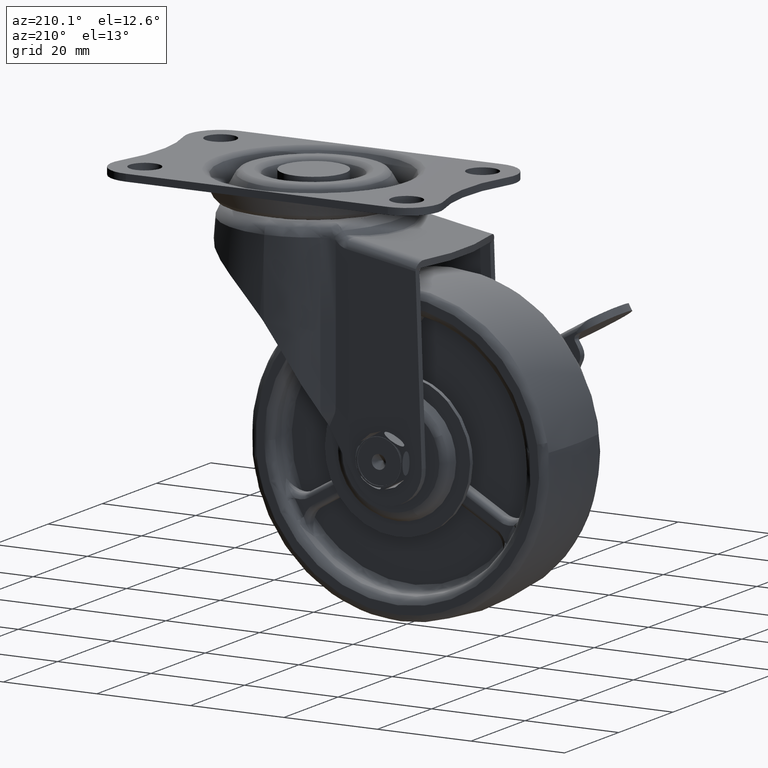
[diagram: clean part render]
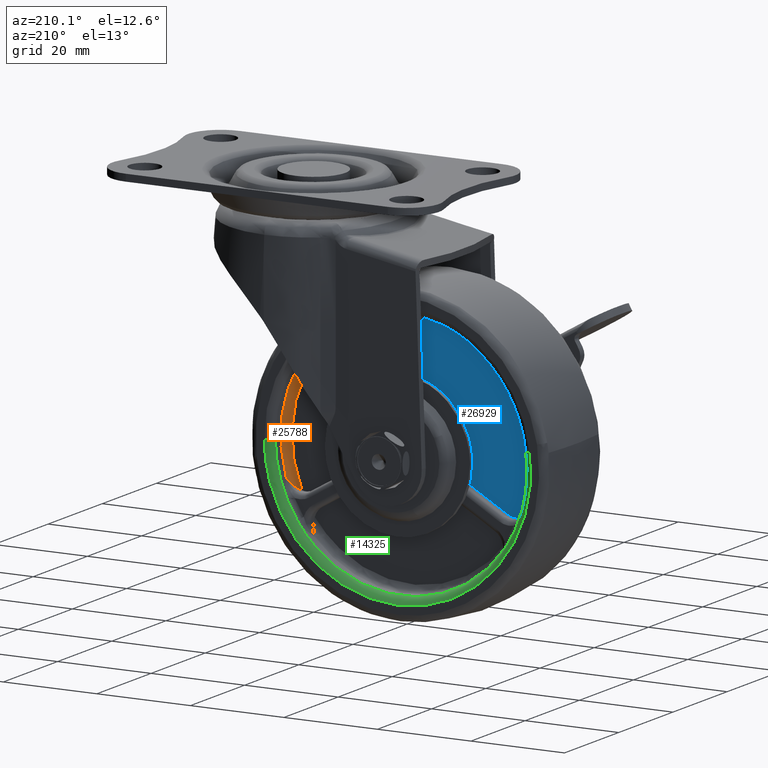
[diagram: same view with three faces highlighted in distinct colors, each labeled with its STEP entity id]
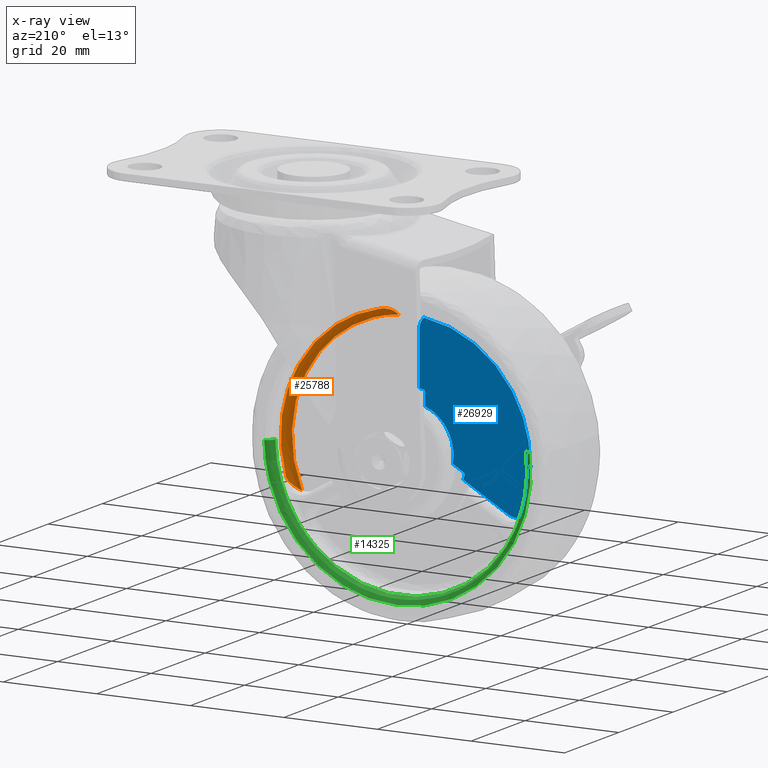
[diagram: x-ray of the same camera — body ghosted, the three highlighted faces saturated]
A machine part, auxiliary view with three faces highlighted in distinct colors.
The next image is the same camera in x-ray (body ghosted, the three faces saturated) — at least one of them is partly hidden behind the body in this view.
Their STEP definitions:

[orange] entity #25788 — the highlighted face is a freeform B-spline surface patch.
#17098=CARTESIAN_POINT('',(1.807665151834615,6.999999999999901,-55.935008250197292));
#17099=VERTEX_POINT('',#17098);
#17543=CARTESIAN_POINT('',(-17.968081162111901,6.999999999999901,-21.682400800960352));
#17544=VERTEX_POINT('',#17543);
#25323=CARTESIAN_POINT('',(-0.671679865304031,5.499999999999880,-58.297543265885203));
#25324=VERTEX_POINT('',#25323);
#25325=CARTESIAN_POINT('',(1.807665151834615,6.999999999999901,-55.935008250197292));
#25326=CARTESIAN_POINT('',(1.802572417654806,6.989417346021186,-55.951571758177629));
#25327=CARTESIAN_POINT('',(1.797263531941373,6.978643638471596,-55.968393292005508));
#25328=CARTESIAN_POINT('',(1.786457539030225,6.957233249904885,-56.001749006744632));
#25329=CARTESIAN_POINT('',(1.769887655901495,6.925153684070589,-56.051614320689858));
#25330=CARTESIAN_POINT('',(1.728709048437610,6.850564636690270,-56.166802064659493));
#25331=CARTESIAN_POINT('',(1.689130452647233,6.787121792885082,-56.263579934565442));
#25332=CARTESIAN_POINT('',(1.604272610714886,6.661003545256827,-56.454610396461838));
#25333=CARTESIAN_POINT('',(1.540127509427934,6.577940325529721,-56.578606638510962));
#25334=CARTESIAN_POINT('',(1.396104531563046,6.414581218477389,-56.820063253236498));
#25335=CARTESIAN_POINT('',(1.316237995153691,6.334277034146261,-56.937524130023156));
#25336=CARTESIAN_POINT('',(1.183444879850539,6.216694078792014,-57.108710034941979));
#25337=CARTESIAN_POINT('',(1.137024814937315,6.178019358758034,-57.164880790768613));
#25338=CARTESIAN_POINT('',(1.040811427791681,6.102766004187364,-57.274137357614443));
#25339=CARTESIAN_POINT('',(0.990885995873707,6.066065866240773,-57.327399661828032));
#25340=CARTESIAN_POINT('',(0.835460711484923,5.959034120109608,-57.483073529685427));
#25341=CARTESIAN_POINT('',(0.724361282010711,5.891724481940802,-57.581394533149037));
#25342=CARTESIAN_POINT('',(0.544986033453203,5.798629475942851,-57.720259943172287));
#25343=CARTESIAN_POINT('',(0.483062536477606,5.768919119112889,-57.765107240059542));
#25344=CARTESIAN_POINT('',(0.354519787393484,5.712620557901545,-57.851771040354542));
#25345=CARTESIAN_POINT('',(0.288323613402311,5.686233789841920,-57.893283625506903));
#25346=CARTESIAN_POINT('',(0.085253696548134,5.613693815011241,-58.011278846061167));
#25347=CARTESIAN_POINT('',(-0.056662904941596,5.573741479956430,-58.081688551809741));
#25348=CARTESIAN_POINT('',(-0.281085686550097,5.530963790820193,-58.174006349235967));
#25349=CARTESIAN_POINT('',(-0.358279058109821,5.519569113998294,-58.202682945193850));
#25350=CARTESIAN_POINT('',(-0.513853883288397,5.504123706243329,-58.254276397452379));
#25351=CARTESIAN_POINT('',(-0.592391840184805,5.499999999999880,-58.277293246200571));
#25352=CARTESIAN_POINT('',(-0.671679865304040,5.499999999999880,-58.297543265885167));
#25353=B_SPLINE_CURVE_WITH_KNOTS('',3,(#25325,#25326,#25327,#25328,#25329,#25330,#25331,#25332,#25333,#25334,#25335,#25336,#25337,#25338,#25339,#25340,#25341,#25342,#25343,#25344,#25345,#25346,#25347,#25348,#25349,#25350,#25351,#25352),.UNSPECIFIED.,.F.,.U.,(4,2,1,1,2,2,2,2,2,2,2,2,2,2,4),(0.0,0.015624999999999,0.031249999999997,0.062499999999998,0.125000000000001,0.250000000000002,0.375000000000004,0.437500000000004,0.500000000000005,0.625000000000002,0.687500000000001,0.749999999999999,0.875000000000000,0.937500000000000,1.0),.UNSPECIFIED.);
#25354=EDGE_CURVE('',#17099,#25324,#25353,.T.);
#25612=CARTESIAN_POINT('',(-21.253767084977849,5.499999999999840,-22.648305626842451));
#25613=VERTEX_POINT('',#25612);
#25614=CARTESIAN_POINT('',(-21.253767084977849,5.499999999999840,-22.648305626842451));
#25615=CARTESIAN_POINT('',(-21.138368555260978,5.499999999999845,-22.530164010211251));
#25616=CARTESIAN_POINT('',(-21.016796356993140,5.516521716597950,-22.422307985272990));
#25617=CARTESIAN_POINT('',(-20.857250396777371,5.551917752464030,-22.299105603553720));
#25618=CARTESIAN_POINT('',(-20.824960606759920,5.559751312781396,-22.275050982165030));
#25619=CARTESIAN_POINT('',(-20.759616960391028,5.576837110956949,-22.228100390802549));
#25620=CARTESIAN_POINT('',(-20.726480081948889,5.586114787047888,-22.205150065972799));
#25621=CARTESIAN_POINT('',(-20.626603656630390,5.615755433273086,-22.138479538466029));
#25622=CARTESIAN_POINT('',(-20.559493661540060,5.637873338622239,-22.096975416527162));
#25623=CARTESIAN_POINT('',(-20.356512504869411,5.710135639395092,-21.980511468169350));
#25624=CARTESIAN_POINT('',(-20.218991768335069,5.766124014545528,-21.913545240605771));
#25625=CARTESIAN_POINT('',(-20.009152194331762,5.859042228488595,-21.827407708345540));
#25626=CARTESIAN_POINT('',(-19.938612556652391,5.891524046484491,-21.801096387299840));
#25627=CARTESIAN_POINT('',(-19.796297360297729,5.959221857884270,-21.753149507625160));
#25628=CARTESIAN_POINT('',(-19.725171120191430,5.994129747287699,-21.731735575324979));
#25629=CARTESIAN_POINT('',(-19.512280828459929,6.101315577640359,-21.674803599606520));
#25630=CARTESIAN_POINT('',(-19.370756917280580,6.176147443877222,-21.646473377101412));
#25631=CARTESIAN_POINT('',(-19.087910467032270,6.330981153615932,-21.607368230847079));
#25632=CARTESIAN_POINT('',(-18.946593124079602,6.410996135159887,-21.596606266015360));
#25633=CARTESIAN_POINT('',(-18.734443593764691,6.534196267148379,-21.593262256226790));
#25634=CARTESIAN_POINT('',(-18.663552603128021,6.575883632073523,-21.594297274926959));
#25635=CARTESIAN_POINT('',(-18.522450418019829,6.659769793524311,-21.600632958701890));
#25636=CARTESIAN_POINT('',(-18.452298989816711,6.701930666121322,-21.605919936815109));
#25637=CARTESIAN_POINT('',(-18.312729858750671,6.786596118041520,-21.620655495708348));
#25638=CARTESIAN_POINT('',(-18.243312752040080,6.829101672852266,-21.630104093990390));
#25639=CARTESIAN_POINT('',(-18.139694597106889,6.893050213133985,-21.647385130483961));
#25640=CARTESIAN_POINT('',(-18.105240691993131,6.914399512880937,-21.653663753935721));
#25641=CARTESIAN_POINT('',(-18.053674268790580,6.946449594340879,-21.663863487528261));
#25642=CARTESIAN_POINT('',(-18.036506141610129,6.957140021757525,-21.667393358137890));
#25643=CARTESIAN_POINT('',(-18.010765216494310,6.973152795525570,-21.672888041913779));
#25644=CARTESIAN_POINT('',(-18.002189931667640,6.978491891364685,-21.674752196358259));
#25645=CARTESIAN_POINT('',(-17.989296367054749,6.986438272026823,-21.677606139213051));
#25646=CARTESIAN_POINT('',(-17.984999185351789,6.989086454935717,-21.678565745505431));
#25647=CARTESIAN_POINT('',(-17.976309618593291,6.994218440064796,-21.680523708443619));
#25648=CARTESIAN_POINT('',(-17.972235724344959,6.997167376279019,-21.681448585375492));
#25649=CARTESIAN_POINT('',(-17.968081162111901,6.999999999999901,-21.682400800960352));
#25650=B_SPLINE_CURVE_WITH_KNOTS('',3,(#25614,#25615,#25616,#25617,#25618,#25619,#25620,#25621,#25622,#25623,#25624,#25625,#25626,#25627,#25628,#25629,#25630,#25631,#25632,#25633,#25634,#25635,#25636,#25637,#25638,#25639,#25640,#25641,#25642,#25643,#25644,#25645,#25646,#25647,#25648,#25649),.UNSPECIFIED.,.F.,.U.,(4,2,2,2,2,2,2,2,2,2,2,2,2,2,2,2,2,4),(0.0,0.125000000000000,0.156250000000000,0.187500000000000,0.250000000000002,0.375000000000002,0.437500000000003,0.500000000000003,0.625000000000003,0.750000000000002,0.812500000000002,0.875000000000002,0.937500000000001,0.968750000000001,0.984375000000000,0.992187500000000,0.996093750000000,1.0),.UNSPECIFIED.);
#25651=EDGE_CURVE('',#25613,#17544,#25650,.T.);
#25732=CARTESIAN_POINT('',(-0.240932959232818,7.104586332630675,-60.818327302669111));
#25733=CARTESIAN_POINT('',(20.548185966341808,7.104586332630674,-22.285225090811007));
#25734=CARTESIAN_POINT('',(-23.216799865048916,7.104586332630676,-21.015009774669657));
#25735=CARTESIAN_POINT('',(-0.135094455843633,5.383996134900336,-60.875428576835027));
#25736=CARTESIAN_POINT('',(20.746632871823859,5.383996134900336,-22.170674596746803));
#25737=CARTESIAN_POINT('',(-23.213310976785944,5.383996134900336,-20.894800906570335));
#25738=CARTESIAN_POINT('',(-1.649398628617038,5.503611494433909,-60.058441422149315));
#25739=CARTESIAN_POINT('',(17.907316673819693,5.503611494433907,-23.809627204729335));
#25740=CARTESIAN_POINT('',(-23.263228897823762,5.503611494433908,-22.614711758841366));
#25748=(BOUNDED_SURFACE()B_SPLINE_SURFACE(2,2,((#25732,#25735,#25738),(#25733,#25736,#25739),(#25734,#25737,#25740)),.UNSPECIFIED.,.F.,.F.,.U.)B_SPLINE_SURFACE_WITH_KNOTS((3,3),(3,3),(0.0,60.279877415865542),(0.0,2.733555907943379),.UNSPECIFIED.)GEOMETRIC_REPRESENTATION_ITEM()RATIONAL_B_SPLINE_SURFACE(((0.836889183095407,0.550714720961816,0.841550722677514),(0.439725924441269,0.289361536353784,0.442175232956023),(0.838767369036391,0.551950660758024,0.843439370264178)))REPRESENTATION_ITEM('')SURFACE());
#25749=CARTESIAN_POINT('',(1.807665151834615,6.999999999999901,-55.935008250197292));
#25750=CARTESIAN_POINT('',(2.232337416524341,6.999999999999916,-54.554107445026098));
#25751=CARTESIAN_POINT('',(2.846688415250719,6.999999999999880,-51.780541648368747));
#25752=CARTESIAN_POINT('',(3.103515673531345,6.999999999999903,-47.557172535124892));
#25753=CARTESIAN_POINT('',(2.752083389385359,6.999999999999907,-43.806130174128427));
#25754=CARTESIAN_POINT('',(1.848251555239779,6.999999999999925,-39.856897081929013));
#25755=CARTESIAN_POINT('',(0.453336548583838,6.999999999999857,-36.289313573943453));
#25756=CARTESIAN_POINT('',(-1.771638923964980,7.000000000000015,-32.492073109848327));
#25757=CARTESIAN_POINT('',(-4.583229508392792,6.999999999999823,-29.021539671726451));
#25758=CARTESIAN_POINT('',(-7.938368504677902,7.0,-26.155826668222620));
#25759=CARTESIAN_POINT('',(-11.147671237168471,6.999999999999725,-24.190370009411598));
#25760=CARTESIAN_POINT('',(-14.293027953934359,7.000000000000201,-22.720325264077800));
#25761=CARTESIAN_POINT('',(-16.559834350096171,6.999999999999552,-22.005045355174371));
#25762=CARTESIAN_POINT('',(-17.968081162111901,6.999999999999901,-21.682400800960352));
#25763=B_SPLINE_CURVE_WITH_KNOTS('',3,(#25749,#25750,#25751,#25752,#25753,#25754,#25755,#25756,#25757,#25758,#25759,#25760,#25761,#25762),.UNSPECIFIED.,.F.,.U.,(4,1,1,1,1,1,1,1,1,1,1,4),(0.000000074012249,4.334168948074925,8.495025308614189,12.655877207458230,15.603134763280870,20.630855960248919,24.098153026901660,28.779103299825220,33.980153227048902,37.274167702712639,40.048054217217008,44.382239579690669),.UNSPECIFIED.);
#25764=EDGE_CURVE('',#17099,#17544,#25763,.T.);
#25765=ORIENTED_EDGE('',*,*,#25764,.F.);
#25766=ORIENTED_EDGE('',*,*,#25354,.T.);
#25767=CARTESIAN_POINT('',(-0.671679865304031,5.499999999999880,-58.297543265885203));
#25768=CARTESIAN_POINT('',(-0.016578501348194,5.499999999999886,-56.813990540085697));
#25769=CARTESIAN_POINT('',(0.831362345161119,5.499999999999877,-54.256586441642973));
#25770=CARTESIAN_POINT('',(1.519128179822718,5.499999999999895,-50.062836838617137));
#25771=CARTESIAN_POINT('',(1.554017953875431,5.499999999999865,-45.928876810974081));
#25772=CARTESIAN_POINT('',(0.849172243778236,5.499999999999888,-41.856681663981469));
#25773=CARTESIAN_POINT('',(-0.494848919253886,5.499999999999884,-37.825016731224011));
#25774=CARTESIAN_POINT('',(-2.271419409332814,5.499999999999865,-34.439305877183202));
#25775=CARTESIAN_POINT('',(-4.524985125549550,5.499999999999927,-31.442236005865190));
#25776=CARTESIAN_POINT('',(-6.560356850857253,5.499999999999780,-29.325312835579471));
#25777=CARTESIAN_POINT('',(-9.102838250412621,5.499999999999952,-27.205507002485628));
#25778=CARTESIAN_POINT('',(-12.392643804931501,5.499999999999752,-25.146451190954188));
#25779=CARTESIAN_POINT('',(-16.633807494886479,5.500000000000106,-23.437370586809649));
#25780=CARTESIAN_POINT('',(-19.703442288211960,5.499999999999517,-22.816095574539069));
#25781=CARTESIAN_POINT('',(-21.253767084977849,5.499999999999840,-22.648305626842451));
#25782=B_SPLINE_CURVE_WITH_KNOTS('',3,(#25767,#25768,#25769,#25770,#25771,#25772,#25773,#25774,#25775,#25776,#25777,#25778,#25779,#25780,#25781),.UNSPECIFIED.,.F.,.U.,(4,1,1,1,1,1,1,1,1,1,1,1,4),(0.000000086024933,4.865220183546484,8.046363176013649,12.724516567075931,17.215526842071071,20.396693095326171,25.448973738094420,28.630144429340820,31.624138302169161,34.243904111671682,38.547807438021032,43.225936896668472,47.904054188482327),.UNSPECIFIED.);
#25783=EDGE_CURVE('',#25324,#25613,#25782,.T.);
#25784=ORIENTED_EDGE('',*,*,#25783,.T.);
#25785=ORIENTED_EDGE('',*,*,#25651,.T.);
#25786=EDGE_LOOP('',(#25765,#25766,#25784,#25785));
#25787=FACE_OUTER_BOUND('',#25786,.T.);
#25788=ADVANCED_FACE('',(#25787),#25748,.F.);

[blue] entity #26929 — the highlighted face is a freeform B-spline surface patch.
#24018=CARTESIAN_POINT('',(-35.221111833886248,5.499999999999840,-51.014403653513803));
#24019=VERTEX_POINT('',#24018);
#24026=CARTESIAN_POINT('',(-35.448116616588209,5.499999999999840,-51.597304150964703));
#24027=VERTEX_POINT('',#24026);
#24033=CARTESIAN_POINT('',(-35.221111833886248,5.499999999999840,-51.014403653513803));
#24034=CARTESIAN_POINT('',(-35.300536784494007,5.499999999999844,-51.059991617960122));
#24035=CARTESIAN_POINT('',(-35.407316465999202,5.499999999999847,-51.170107959296949));
#24036=CARTESIAN_POINT('',(-35.481127200657149,5.499999999999830,-51.386415901257777));
#24037=CARTESIAN_POINT('',(-35.471465623941711,5.499999999999858,-51.523443110652167));
#24038=CARTESIAN_POINT('',(-35.448116616588209,5.499999999999840,-51.597304150964703));
#24039=B_SPLINE_CURVE_WITH_KNOTS('',3,(#24033,#24034,#24035,#24036,#24037,#24038),.UNSPECIFIED.,.F.,.U.,(4,1,1,4),(0.000000324811324,0.274588564917830,0.443530060473280,0.675877648366650),.UNSPECIFIED.);
#24040=EDGE_CURVE('',#24019,#24027,#24039,.T.);
#24091=CARTESIAN_POINT('',(-32.912139278761309,5.499999999999880,-49.681317184623303));
#24092=VERTEX_POINT('',#24091);
#24103=CARTESIAN_POINT('',(-32.912139278761309,5.499999999999880,-49.681317184623303));
#24104=CARTESIAN_POINT('',(-35.221111833886248,5.499999999999840,-51.014403653513803));
#24105=QUASI_UNIFORM_CURVE('',1,(#24103,#24104),.UNSPECIFIED.,.F.,.U.);
#24106=EDGE_CURVE('',#24092,#24019,#24105,.T.);
#24255=CARTESIAN_POINT('',(-35.156203291369437,5.499999999999840,-52.420304600271912));
#24256=VERTEX_POINT('',#24255);
#24262=CARTESIAN_POINT('',(-35.448116616588209,5.499999999999840,-51.597304150964703));
#24263=CARTESIAN_POINT('',(-35.360841179118893,5.499999999999849,-51.875056804125819));
#24264=CARTESIAN_POINT('',(-35.263448904633513,5.499999999999838,-52.149634591236492));
#24265=CARTESIAN_POINT('',(-35.156203291369437,5.499999999999840,-52.420304600271912));
#24266=B_SPLINE_CURVE_WITH_KNOTS('',3,(#24262,#24263,#24264,#24265),.UNSPECIFIED.,.F.,.U.,(4,4),(1.951348E-010,0.873432956247361),.UNSPECIFIED.);
#24267=EDGE_CURVE('',#24027,#24256,#24266,.T.);
#24286=CARTESIAN_POINT('',(-26.608695114156799,5.499999999999840,-36.286981452012199));
#24287=VERTEX_POINT('',#24286);
#24294=CARTESIAN_POINT('',(-26.999999484400249,5.499999999999840,-36.775023742037597));
#24295=VERTEX_POINT('',#24294);
#24301=CARTESIAN_POINT('',(-26.608695114156799,5.499999999999840,-36.286981452012199));
#24302=CARTESIAN_POINT('',(-26.698133347053378,5.499999999999842,-36.306664948104803));
#24303=CARTESIAN_POINT('',(-26.833016777543310,5.499999999999835,-36.379701084608378));
#24304=CARTESIAN_POINT('',(-26.968264757441940,5.499999999999855,-36.563944489779828));
#24305=CARTESIAN_POINT('',(-27.000140783618619,5.499999999999828,-36.697557086677712));
#24306=CARTESIAN_POINT('',(-26.999999484400249,5.499999999999840,-36.775023742037597));
#24307=B_SPLINE_CURVE_WITH_KNOTS('',3,(#24301,#24302,#24303,#24304,#24305,#24306),.UNSPECIFIED.,.F.,.U.,(4,1,1,4),(0.000000324812655,0.274588658902083,0.443530212254664,0.675877879675572),.UNSPECIFIED.);
#24308=EDGE_CURVE('',#24287,#24295,#24307,.T.);
#24361=CARTESIAN_POINT('',(-26.999999392723399,5.499999999999880,-39.441195202367062));
#24362=VERTEX_POINT('',#24361);
#24370=CARTESIAN_POINT('',(-26.999999484400249,5.499999999999840,-36.775023742037597));
#24371=CARTESIAN_POINT('',(-26.999999392723399,5.499999999999880,-39.441195202367062));
#24372=QUASI_UNIFORM_CURVE('',1,(#24370,#24371),.UNSPECIFIED.,.F.,.U.);
#24373=EDGE_CURVE('',#24295,#24362,#24372,.T.);
#24440=CARTESIAN_POINT('',(-25.749998056451499,5.499999999999840,-36.128285642919337));
#24441=VERTEX_POINT('',#24440);
#24442=CARTESIAN_POINT('',(-25.749998056451499,5.499999999999840,-36.128285642919337));
#24443=CARTESIAN_POINT('',(-26.038029047697030,5.499999999999836,-36.170743232809883));
#24444=CARTESIAN_POINT('',(-26.324514538828581,5.499999999999848,-36.223687827663419));
#24445=CARTESIAN_POINT('',(-26.608695114156799,5.499999999999840,-36.286981452012199));
#24446=B_SPLINE_CURVE_WITH_KNOTS('',3,(#24442,#24443,#24444,#24445),.UNSPECIFIED.,.F.,.U.,(4,4),(1.950982E-010,0.873434026398208),.UNSPECIFIED.);
#24447=EDGE_CURVE('',#24441,#24287,#24446,.T.);
#25110=CARTESIAN_POINT('',(-44.712231000000003,5.499999999999840,-57.937476538999903));
#25111=VERTEX_POINT('',#25110);
#25118=CARTESIAN_POINT('',(-47.328324349542903,5.499999999999880,-58.297533717460603));
#25119=VERTEX_POINT('',#25118);
#25157=CARTESIAN_POINT('',(-47.328324349542903,5.499999999999880,-58.297533717460603));
#25158=CARTESIAN_POINT('',(-47.027723424899548,5.499999999999869,-58.374418783533919));
#25159=CARTESIAN_POINT('',(-46.490751217413141,5.499999999999876,-58.437379783091771));
#25160=CARTESIAN_POINT('',(-45.589643504653637,5.499999999999849,-58.335556719650022));
#25161=CARTESIAN_POINT('',(-45.029716552589122,5.499999999999846,-58.120980782777302));
#25162=CARTESIAN_POINT('',(-44.712231000000003,5.499999999999840,-57.937476538999903));
#25163=B_SPLINE_CURVE_WITH_KNOTS('',3,(#25157,#25158,#25159,#25160,#25161,#25162),.UNSPECIFIED.,.F.,.U.,(4,1,1,4),(0.000000019433803,0.930822624955596,1.607783421477482,2.707846732670477),.UNSPECIFIED.);
#25164=EDGE_CURVE('',#25119,#25111,#25163,.T.);
#25679=CARTESIAN_POINT('',(-26.746222538420451,5.499999999999840,-22.648304502794701));
#25680=VERTEX_POINT('',#25679);
#25713=CARTESIAN_POINT('',(-25.749996078900949,5.499999999999840,-25.093936948194049));
#25714=VERTEX_POINT('',#25713);
#25720=CARTESIAN_POINT('',(-25.749996078900949,5.499999999999840,-25.093936948194049));
#25721=CARTESIAN_POINT('',(-25.749952397234079,5.499999999999841,-24.840077048104359));
#25722=CARTESIAN_POINT('',(-25.802407600860850,5.499999999999843,-24.360605325730610));
#25723=CARTESIAN_POINT('',(-26.082658693894899,5.499999999999843,-23.498143706260041));
#25724=CARTESIAN_POINT('',(-26.450271070758220,5.499999999999842,-22.950751082189768));
#25725=CARTESIAN_POINT('',(-26.746222538420451,5.499999999999840,-22.648304502794701));
#25726=B_SPLINE_CURVE_WITH_KNOTS('',3,(#25720,#25721,#25722,#25723,#25724,#25725),.UNSPECIFIED.,.F.,.U.,(4,1,1,4),(0.000000019432195,0.761581907006202,1.438543073069438,2.707846595368655),.UNSPECIFIED.);
#25727=EDGE_CURVE('',#25714,#25680,#25726,.T.);
#26041=CARTESIAN_POINT('',(-26.746222538420451,5.499999999999840,-22.648304502794701));
#26042=CARTESIAN_POINT('',(-27.924452531257600,5.499999999999839,-22.775897249582609));
#26043=CARTESIAN_POINT('',(-30.447708793524079,5.499999999999830,-23.228865280280790));
#26044=CARTESIAN_POINT('',(-34.120696554032612,5.499999999999912,-24.478881436195710));
#26045=CARTESIAN_POINT('',(-37.273991635515308,5.499999999999773,-26.144026718153331));
#26046=CARTESIAN_POINT('',(-39.774966385362212,5.499999999999933,-27.907913857898471));
#26047=CARTESIAN_POINT('',(-41.987764920626837,5.499999999999862,-29.836834730644561));
#26048=CARTESIAN_POINT('',(-44.288150735278293,5.499999999999870,-32.393120227720402));
#26049=CARTESIAN_POINT('',(-46.146519963824211,5.499999999999965,-35.215443595777977));
#26050=CARTESIAN_POINT('',(-47.679808188111217,5.499999999999787,-38.358339102666143));
#26051=CARTESIAN_POINT('',(-48.731323558802082,5.499999999999988,-41.436857878784281));
#26052=CARTESIAN_POINT('',(-49.320958623070403,5.499999999999786,-44.569927313020777));
#26053=CARTESIAN_POINT('',(-49.557911463261078,5.499999999999924,-47.682721630735593));
#26054=CARTESIAN_POINT('',(-49.446477810145502,5.499999999999869,-50.369748965462762));
#26055=CARTESIAN_POINT('',(-48.857921619099443,5.499999999999914,-54.131987295761682));
#26056=CARTESIAN_POINT('',(-48.084357486846727,5.499999999999665,-56.585766387627402));
#26057=CARTESIAN_POINT('',(-47.328324349542903,5.499999999999880,-58.297533717460603));
#26058=B_SPLINE_CURVE_WITH_KNOTS('',3,(#26041,#26042,#26043,#26044,#26045,#26046,#26047,#26048,#26049,#26050,#26051,#26052,#26053,#26054,#26055,#26056,#26057),.UNSPECIFIED.,.F.,.U.,(4,1,1,1,1,1,1,1,1,1,1,1,1,1,4),(0.000000085979899,3.555360638020218,7.672131550280987,11.601762321061630,14.221528326408331,16.841294506952369,20.396693095294310,24.513344384200082,26.946018206328070,30.875631543848801,34.243904111651680,36.489418031942847,40.231943023829572,42.290302372107803,47.904054188482107),.UNSPECIFIED.);
#26059=EDGE_CURVE('',#25680,#25119,#26058,.T.);
#26410=CARTESIAN_POINT('',(-44.712231000000003,5.499999999999840,-57.937476538999903));
#26411=CARTESIAN_POINT('',(-35.156203291369437,5.499999999999840,-52.420304600271912));
#26412=QUASI_UNIFORM_CURVE('',1,(#26410,#26411),.UNSPECIFIED.,.F.,.U.);
#26413=EDGE_CURVE('',#25111,#24256,#26412,.T.);
#26595=CARTESIAN_POINT('',(-25.749996078900949,5.499999999999840,-25.093936948194049));
#26596=CARTESIAN_POINT('',(-25.749998056451499,5.499999999999840,-36.128285642919337));
#26597=QUASI_UNIFORM_CURVE('',1,(#26595,#26596),.UNSPECIFIED.,.F.,.U.);
#26598=EDGE_CURVE('',#25714,#24441,#26597,.T.);
#26894=CARTESIAN_POINT('',(-26.999999392723399,5.499999999999880,-39.441195202367062));
#26895=CARTESIAN_POINT('',(-27.633089235224411,5.499999999999900,-39.662992838008833));
#26896=CARTESIAN_POINT('',(-28.849661254145811,5.499999999999860,-40.247943673820892));
#26897=CARTESIAN_POINT('',(-30.410431294483310,5.499999999999897,-41.484317131531292));
#26898=CARTESIAN_POINT('',(-31.540562913399452,5.499999999999867,-42.869277320459311));
#26899=CARTESIAN_POINT('',(-32.251985706990602,5.499999999999879,-44.167357236123962));
#26900=CARTESIAN_POINT('',(-32.764729500076243,5.499999999999867,-45.518251875477752));
#26901=CARTESIAN_POINT('',(-33.136502890381131,5.499999999999925,-47.334556479602682));
#26902=CARTESIAN_POINT('',(-33.074186793345980,5.499999999999855,-48.824409182859853));
#26903=CARTESIAN_POINT('',(-32.912139278761309,5.499999999999880,-49.681317184623303));
#26904=B_SPLINE_CURVE_WITH_KNOTS('',3,(#26894,#26895,#26896,#26897,#26898,#26899,#26900,#26901,#26902,#26903),.UNSPECIFIED.,.F.,.U.,(4,1,1,1,1,1,1,4),(0.000000105214642,2.012441288359250,4.024902012248965,5.936766505718044,7.345405380774468,8.452278207383722,10.263499971908290,12.879675816306129),.UNSPECIFIED.);
#26905=EDGE_CURVE('',#24362,#24092,#26904,.T.);
#26910=CARTESIAN_POINT('',(-50.679459734656540,5.499999999999881,-60.192399323518593));
#26911=CARTESIAN_POINT('',(-50.679459734656540,5.499999999999880,-20.862192331750240));
#26912=CARTESIAN_POINT('',(-24.564008811047501,5.499999999999881,-60.192399323518593));
#26913=CARTESIAN_POINT('',(-24.564008811047501,5.499999999999880,-20.862192331750240));
#26914=B_SPLINE_SURFACE_WITH_KNOTS('',1,1,((#26910,#26912),(#26911,#26913)),.UNSPECIFIED.,.F.,.F.,.U.,(2,2),(2,2),(0.0,39.330206991768350),(0.0,26.115450923609039),.UNSPECIFIED.);
#26915=ORIENTED_EDGE('',*,*,#26905,.T.);
#26916=ORIENTED_EDGE('',*,*,#24106,.T.);
#26917=ORIENTED_EDGE('',*,*,#24040,.T.);
#26918=ORIENTED_EDGE('',*,*,#24267,.T.);
#26919=ORIENTED_EDGE('',*,*,#26413,.F.);
#26920=ORIENTED_EDGE('',*,*,#25164,.F.);
#26921=ORIENTED_EDGE('',*,*,#26059,.F.);
#26922=ORIENTED_EDGE('',*,*,#25727,.F.);
#26923=ORIENTED_EDGE('',*,*,#26598,.T.);
#26924=ORIENTED_EDGE('',*,*,#24447,.T.);
#26925=ORIENTED_EDGE('',*,*,#24308,.T.);
#26926=ORIENTED_EDGE('',*,*,#24373,.T.);
#26927=EDGE_LOOP('',(#26915,#26916,#26917,#26918,#26919,#26920,#26921,#26922,#26923,#26924,#26925,#26926));
#26928=FACE_OUTER_BOUND('',#26927,.T.);
#26929=ADVANCED_FACE('',(#26928),#26914,.T.);

[green] entity #14325 — the highlighted face is a freeform B-spline surface patch.
#14166=CARTESIAN_POINT('',(-50.781723147693683,8.895694271000259,-44.545232612276017));
#14167=CARTESIAN_POINT('',(-50.981842985836089,8.895694271000259,-46.096584615291725));
#14168=CARTESIAN_POINT('',(-51.001498863133278,8.895694271000259,-47.660667296407595));
#14169=CARTESIAN_POINT('',(-51.340827566725686,8.895694271000261,-74.662166159540888));
#14170=CARTESIAN_POINT('',(-24.339328703592400,8.895694271000259,-75.001494863133289));
#14171=CARTESIAN_POINT('',(2.662170159540886,8.895694271000261,-75.340823566725703));
#14172=CARTESIAN_POINT('',(3.001498863133284,8.895694271000259,-48.339324703592403));
#14173=CARTESIAN_POINT('',(-50.662771894365761,10.616307360756180,-44.560576973527724));
#14174=CARTESIAN_POINT('',(-50.862002898528694,10.616307360756181,-46.105038633300985));
#14175=CARTESIAN_POINT('',(-50.881571474078086,10.616307360756181,-47.662174427758345));
#14176=CARTESIAN_POINT('',(-51.219393046319752,10.616307360756180,-74.543745901836417));
#14177=CARTESIAN_POINT('',(-24.337821572241676,10.616307360756181,-74.881567474078096));
#14178=CARTESIAN_POINT('',(2.543749901836421,10.616307360756180,-75.219389046319748));
#14179=CARTESIAN_POINT('',(2.881571474078092,10.616307360756181,-48.337817572241676));
#14180=CARTESIAN_POINT('',(-52.369245390117136,10.496368949574540,-44.340446919806730));
#14181=CARTESIAN_POINT('',(-52.581227597698927,10.496368949574538,-45.983757375123410));
#14182=CARTESIAN_POINT('',(-52.602048603252882,10.496368949574535,-47.640553136408450));
#14183=CARTESIAN_POINT('',(-52.961491466844421,10.496368949574535,-76.242601739661310));
#14184=CARTESIAN_POINT('',(-24.359442863591543,10.496368949574535,-76.602044603252864));
#14185=CARTESIAN_POINT('',(4.242605739661324,10.496368949574535,-76.961487466844417));
#14186=CARTESIAN_POINT('',(4.602048603252877,10.496368949574535,-48.359438863591549));
#14194=(BOUNDED_SURFACE()B_SPLINE_SURFACE(2,2,((#14166,#14173,#14180),(#14167,#14174,#14181),(#14168,#14175,#14182),(#14169,#14176,#14183),(#14170,#14177,#14184),(#14171,#14178,#14185),(#14172,#14179,#14186)),.UNSPECIFIED.,.F.,.F.,.U.)B_SPLINE_SURFACE_WITH_KNOTS((3,2,2,3),(3,3),(0.0,3.791449803210615,51.184617540990153,98.577785278769667),(0.0,2.733562659867075),.UNSPECIFIED.)GEOMETRIC_REPRESENTATION_ITEM()RATIONAL_B_SPLINE_SURFACE(((0.871225528325474,0.571719740789479,0.871225886449487),(0.889145964494378,0.583479574251903,0.889146329984726),(0.910479813201066,0.597479373449790,0.910480187460858),(0.643806450047935,0.422481716585436,0.643806714689572),(0.910479813201066,0.597479373449790,0.910480187460858),(0.643806450047935,0.422481716585436,0.643806714689572),(0.910479813201066,0.597479373449790,0.910480187460858)))REPRESENTATION_ITEM('')SURFACE());
#14195=CARTESIAN_POINT('',(-52.265795055891971,10.499999999999879,-44.353788467567121));
#14196=VERTEX_POINT('',#14195);
#14197=CARTESIAN_POINT('',(-24.0,10.499999999999879,-76.499995999999996));
#14198=VERTEX_POINT('',#14197);
#14199=CARTESIAN_POINT('',(-52.265795055891971,10.499999999999879,-44.353788467567121));
#14200=CARTESIAN_POINT('',(-52.459460237967598,10.499999999999890,-45.854587308989530));
#14201=CARTESIAN_POINT('',(-52.616307290706317,10.499999999999890,-49.076659507214593));
#14202=CARTESIAN_POINT('',(-52.105988724831043,10.499999999999860,-53.287274415185983));
#14203=CARTESIAN_POINT('',(-50.955668902328021,10.499999999999959,-57.554875069087878));
#14204=CARTESIAN_POINT('',(-49.405599837427893,10.499999999999771,-61.160752393433867));
#14205=CARTESIAN_POINT('',(-47.463220972208923,10.500000000000041,-64.267908138923275));
#14206=CARTESIAN_POINT('',(-45.331222381498392,10.499999999999620,-67.006475821493709));
#14207=CARTESIAN_POINT('',(-43.015772667046299,10.500000000000030,-69.342443024804524));
#14208=CARTESIAN_POINT('',(-40.166061318840903,10.499999999999829,-71.540658511087301));
#14209=CARTESIAN_POINT('',(-37.631847576913643,10.499999999999890,-73.085889577645489));
#14210=CARTESIAN_POINT('',(-34.782778103418202,10.499999999999890,-74.443529415084839));
#14211=CARTESIAN_POINT('',(-31.859347841297950,10.499999999999851,-75.461802144766722));
#14212=CARTESIAN_POINT('',(-28.161389009668440,10.499999999999931,-76.284930211857258));
#14213=CARTESIAN_POINT('',(-25.576308775081969,10.499999999999890,-76.500136789037867));
#14214=CARTESIAN_POINT('',(-24.0,10.499999999999879,-76.499995999999996));
#14215=B_SPLINE_CURVE_WITH_KNOTS('',3,(#14199,#14200,#14201,#14202,#14203,#14204,#14205,#14206,#14207,#14208,#14209,#14210,#14211,#14212,#14213,#14214),.UNSPECIFIED.,.F.,.U.,(4,1,1,1,1,1,1,1,1,1,1,1,1,4),(0.000000076022950,4.539742938878490,9.646969133558983,12.673473031666679,17.780701478417079,21.374706123102040,23.644584740332281,28.184285188083379,31.210788733190871,34.426437072969627,37.074635251836547,40.668606617907443,43.695109552070242,48.424012503146074),.UNSPECIFIED.);
#14216=EDGE_CURVE('',#14196,#14198,#14215,.T.);
#14217=ORIENTED_EDGE('',*,*,#14216,.F.);
#14218=CARTESIAN_POINT('',(-50.778121639999902,9.000000003031580,-44.545694126485053));
#14219=VERTEX_POINT('',#14218);
#14220=CARTESIAN_POINT('',(-50.778121639999902,9.000000003031580,-44.545694126485053));
#14221=CARTESIAN_POINT('',(-50.777899272433856,9.196394004121599,-44.545722811271688));
#14222=CARTESIAN_POINT('',(-50.836345055081360,9.490735478002723,-44.538183470774641));
#14223=CARTESIAN_POINT('',(-51.038154016826986,9.871374530543619,-44.512150686048692));
#14224=CARTESIAN_POINT('',(-51.282198743838933,10.149703682789831,-44.480669607175408));
#14225=CARTESIAN_POINT('',(-51.694024045401633,10.419878301775160,-44.427545309187273));
#14226=CARTESIAN_POINT('',(-52.046642110088563,10.500358274213211,-44.382058577134742));
#14227=CARTESIAN_POINT('',(-52.265795055891971,10.499999999999879,-44.353788467567121));
#14228=B_SPLINE_CURVE_WITH_KNOTS('',3,(#14220,#14221,#14222,#14223,#14224,#14225,#14226,#14227),.UNSPECIFIED.,.F.,.U.,(4,1,1,1,1,4),(0.000000285955935,0.589064494253819,0.883618587621487,1.288575075546695,1.693553628198993,2.356253612612516),.UNSPECIFIED.);
#14229=EDGE_CURVE('',#14219,#14196,#14228,.T.);
#14230=ORIENTED_EDGE('',*,*,#14229,.F.);
#14231=CARTESIAN_POINT('',(-48.314313469151998,8.999999999999879,-59.739423606311000));
#14232=VERTEX_POINT('',#14231);
#14233=CARTESIAN_POINT('',(-50.778121639999902,9.000000003031580,-44.545694126485053));
#14234=CARTESIAN_POINT('',(-50.955022977244688,9.000000002509644,-45.916347306499972));
#14235=CARTESIAN_POINT('',(-51.085009078060878,9.000000001670527,-48.440575882964019));
#14236=CARTESIAN_POINT('',(-50.789824611415263,9.000000000854595,-51.767266430947792));
#14237=CARTESIAN_POINT('',(-50.041655376071773,9.000000000193255,-55.518155231487441));
#14238=CARTESIAN_POINT('',(-49.127594396154457,8.999999999999666,-58.055738531472819));
#14239=CARTESIAN_POINT('',(-48.314313469151998,8.999999999999879,-59.739423606311000));
#14240=B_SPLINE_CURVE_WITH_KNOTS('',3,(#14233,#14234,#14235,#14236,#14237,#14238,#14239),.UNSPECIFIED.,.F.,.U.,(4,1,1,1,4),(2.300032E-009,4.146059230164715,7.560461166246623,9.999318954709569,15.608693533477680),.UNSPECIFIED.);
#14241=EDGE_CURVE('',#14219,#14232,#14240,.T.);
#14242=ORIENTED_EDGE('',*,*,#14241,.T.);
#14243=CARTESIAN_POINT('',(-46.323805401514498,8.999999999999879,-63.187086320246102));
#14244=VERTEX_POINT('',#14243);
#14245=CARTESIAN_POINT('',(-48.314313469151998,8.999999999999879,-59.739423606311000));
#14246=CARTESIAN_POINT('',(-47.736847807680078,8.999999999999881,-60.935535317137251));
#14247=CARTESIAN_POINT('',(-47.070948640115283,8.999999999999885,-62.088938047739212));
#14248=CARTESIAN_POINT('',(-46.323805401514498,8.999999999999879,-63.187086320246102));
#14249=B_SPLINE_CURVE_WITH_KNOTS('',3,(#14245,#14246,#14247,#14248),.UNSPECIFIED.,.F.,.U.,(4,4),(5.597536E-010,3.984636054970689),.UNSPECIFIED.);
#14250=EDGE_CURVE('',#14232,#14244,#14249,.T.);
#14251=ORIENTED_EDGE('',*,*,#14250,.T.);
#14252=CARTESIAN_POINT('',(-1.676200732470385,8.999999999999879,-63.187095336708303));
#14253=VERTEX_POINT('',#14252);
#14254=CARTESIAN_POINT('',(-46.323805401514498,8.999999999999879,-63.187086320246102));
#14255=CARTESIAN_POINT('',(-45.476944428786233,8.999999999999879,-64.432098936247613));
#14256=CARTESIAN_POINT('',(-43.487678303814782,8.999999999999863,-66.886593081407113));
#14257=CARTESIAN_POINT('',(-39.906484007716770,8.999999999999892,-69.995302861080603));
#14258=CARTESIAN_POINT('',(-36.244352205696501,8.999999999999856,-72.171097726035597));
#14259=CARTESIAN_POINT('',(-32.822673633489281,8.999999999999961,-73.584072968183932));
#14260=CARTESIAN_POINT('',(-29.587892992449010,8.999999999999604,-74.492504208302236));
#14261=CARTESIAN_POINT('',(-25.786170580524029,9.000000000000348,-75.045744108664664));
#14262=CARTESIAN_POINT('',(-22.008749684873049,8.999999999999654,-75.017035714736721));
#14263=CARTESIAN_POINT('',(-18.686493147299519,8.999999999999815,-74.520579616379280));
#14264=CARTESIAN_POINT('',(-15.500801741239680,9.000000000000020,-73.703973953453954));
#14265=CARTESIAN_POINT('',(-11.733340872620531,8.999999999999796,-72.214957046456988));
#14266=CARTESIAN_POINT('',(-8.109555391323600,8.999999999999943,-69.967385132322320));
#14267=CARTESIAN_POINT('',(-4.577494051762789,8.999999999999767,-66.924966593959198));
#14268=CARTESIAN_POINT('',(-2.715448815860256,9.000000000000078,-64.715145668425308));
#14269=CARTESIAN_POINT('',(-1.676200732470385,8.999999999999879,-63.187095336708303));
#14270=B_SPLINE_CURVE_WITH_KNOTS('',3,(#14254,#14255,#14256,#14257,#14258,#14259,#14260,#14261,#14262,#14263,#14264,#14265,#14266,#14267,#14268,#14269),.UNSPECIFIED.,.F.,.U.,(4,1,1,1,1,1,1,1,1,1,1,1,1,4),(0.000000067368312,4.517190438561912,9.445106697745601,14.167690104276449,17.247635279849689,20.532883107862229,24.228843123170542,28.745979092274450,31.825954867337920,34.289898136465837,38.601803179530890,43.940360112605127,47.020319528316620,52.564161900470523),.UNSPECIFIED.);
#14271=EDGE_CURVE('',#14244,#14253,#14270,.T.);
#14272=ORIENTED_EDGE('',*,*,#14271,.T.);
#14273=CARTESIAN_POINT('',(0.314308727659106,8.999999999999879,-59.739433426728802));
#14274=VERTEX_POINT('',#14273);
#14275=CARTESIAN_POINT('',(-1.676200732470385,8.999999999999879,-63.187095336708303));
#14276=CARTESIAN_POINT('',(-0.929057638427990,8.999999999999886,-62.088946977165101));
#14277=CARTESIAN_POINT('',(-0.263157382070379,8.999999999999877,-60.935545038107442));
#14278=CARTESIAN_POINT('',(0.314308727659106,8.999999999999879,-59.739433426728802));
#14279=B_SPLINE_CURVE_WITH_KNOTS('',3,(#14275,#14276,#14277,#14278),.UNSPECIFIED.,.F.,.U.,(4,4),(5.587224E-010,3.984636054970710),.UNSPECIFIED.);
#14280=EDGE_CURVE('',#14253,#14274,#14279,.T.);
#14281=ORIENTED_EDGE('',*,*,#14280,.T.);
#14282=CARTESIAN_POINT('',(2.997868193503032,9.000000003031248,-48.339279076850488));
#14283=VERTEX_POINT('',#14282);
#14284=CARTESIAN_POINT('',(0.314308727659106,8.999999999999879,-59.739433426728802));
#14285=CARTESIAN_POINT('',(1.089859172473557,8.999999999999542,-58.133758549572129));
#14286=CARTESIAN_POINT('',(1.938694439951869,9.000000000291781,-55.812553167312963));
#14287=CARTESIAN_POINT('',(2.775400278523580,9.000000001389251,-51.964484092749743));
#14288=CARTESIAN_POINT('',(2.979437057069340,9.000000002285404,-49.814868712705170));
#14289=CARTESIAN_POINT('',(2.997868193503032,9.000000003031248,-48.339279076850488));
#14290=B_SPLINE_CURVE_WITH_KNOTS('',3,(#14284,#14285,#14286,#14287,#14288,#14289),.UNSPECIFIED.,.F.,.U.,(4,1,1,4),(5.928406E-009,5.349415894761514,7.378491793097129,11.805587084304859),.UNSPECIFIED.);
#14291=EDGE_CURVE('',#14274,#14283,#14290,.T.);
#14292=ORIENTED_EDGE('',*,*,#14291,.T.);
#14293=CARTESIAN_POINT('',(4.497749753101353,10.499999999999879,-48.358128136984590));
#14294=VERTEX_POINT('',#14293);
#14295=CARTESIAN_POINT('',(2.997868193503032,9.000000003031248,-48.339279076850488));
#14296=CARTESIAN_POINT('',(2.997565641300028,9.220941000265643,-48.339275274667131));
#14297=CARTESIAN_POINT('',(3.083443836332163,9.601113684880891,-48.340354508725447));
#14298=CARTESIAN_POINT('',(3.371811593583559,10.021255371523241,-48.343978435669570));
#14299=CARTESIAN_POINT('',(3.677683167486768,10.272220316815551,-48.347822333645027));
#14300=CARTESIAN_POINT('',(4.043799980057285,10.450948053521209,-48.352423335485248));
#14301=CARTESIAN_POINT('',(4.325940912544628,10.500122363972100,-48.355969009721029));
#14302=CARTESIAN_POINT('',(4.497749753101353,10.499999999999879,-48.358128136984590));
#14303=B_SPLINE_CURVE_WITH_KNOTS('',3,(#14295,#14296,#14297,#14298,#14299,#14300,#14301,#14302),.UNSPECIFIED.,.F.,.U.,(4,1,1,1,1,4),(0.000000285948795,0.662701827281595,1.141351332131821,1.509470520372083,1.840826949672784,2.356253613243446),.UNSPECIFIED.);
#14304=EDGE_CURVE('',#14283,#14294,#14303,.T.);
#14305=ORIENTED_EDGE('',*,*,#14304,.T.);
#14306=CARTESIAN_POINT('',(-24.0,10.499999999999879,-76.499995999999996));
#14307=CARTESIAN_POINT('',(-22.438725413603130,10.499999999999860,-76.500127563095234));
#14308=CARTESIAN_POINT('',(-20.067956254667141,10.499999999999920,-76.304648321996552));
#14309=CARTESIAN_POINT('',(-16.499468939586031,10.499999999999810,-75.555433620270961));
#14310=CARTESIAN_POINT('',(-13.194883798918200,10.500000000000011,-74.473164861990639));
#14311=CARTESIAN_POINT('',(-9.708083064101857,10.499999999999710,-72.760704810192877));
#14312=CARTESIAN_POINT('',(-6.249511600734055,10.500000000000000,-70.427649382340391));
#14313=CARTESIAN_POINT('',(-3.549118659092286,10.499999999999750,-67.964171907340784));
#14314=CARTESIAN_POINT('',(-0.890700998758398,10.499999999999920,-64.829855708068820));
#14315=CARTESIAN_POINT('',(1.237856420594213,10.499999999999901,-61.505505861163279));
#14316=CARTESIAN_POINT('',(3.010009672213293,10.499999999999840,-57.407846332794740));
#14317=CARTESIAN_POINT('',(4.166921321718914,10.500000000000000,-53.095947414242303));
#14318=CARTESIAN_POINT('',(4.476821642079169,10.499999999999810,-50.034920294889822));
#14319=CARTESIAN_POINT('',(4.497749753101353,10.499999999999879,-48.358128136984590));
#14320=B_SPLINE_CURVE_WITH_KNOTS('',3,(#14306,#14307,#14308,#14309,#14310,#14311,#14312,#14313,#14314,#14315,#14316,#14317,#14318,#14319),.UNSPECIFIED.,.F.,.U.,(4,1,1,1,1,1,1,1,1,1,1,4),(0.000000069453584,4.683795349004555,7.112475306252087,10.928930745617469,15.092352829005360,18.735313752394781,23.419122057927609,26.021231131072948,31.052034176987728,35.215452414918907,39.378860449840062,44.409622302983941),.UNSPECIFIED.);
#14321=EDGE_CURVE('',#14198,#14294,#14320,.T.);
#14322=ORIENTED_EDGE('',*,*,#14321,.F.);
#14323=EDGE_LOOP('',(#14217,#14230,#14242,#14251,#14272,#14281,#14292,#14305,#14322));
#14324=FACE_OUTER_BOUND('',#14323,.T.);
#14325=ADVANCED_FACE('',(#14324),#14194,.T.);